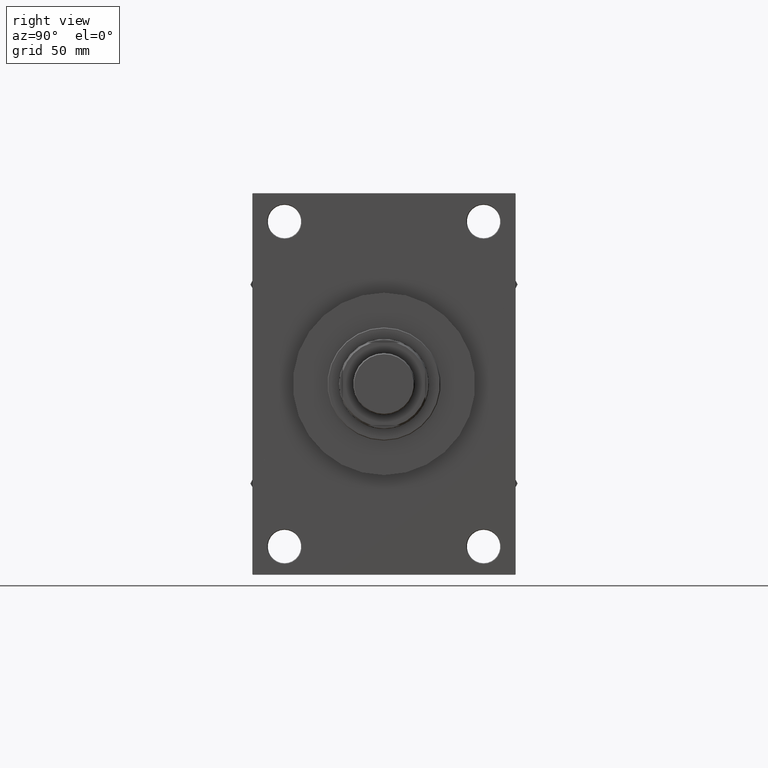
[diagram: clean part render]
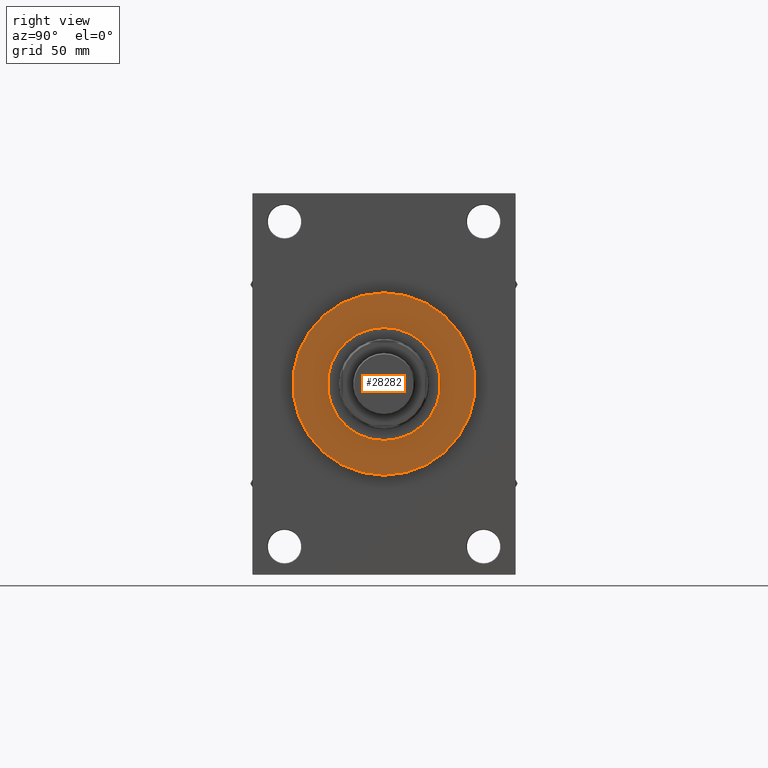
[diagram: same view with one face highlighted and labeled with its STEP entity id]
A machine part, right view. The second image highlights one B-rep face of the part: STEP entity #28282.
In plain terms, the highlighted planar face has unit normal (1, -0, -0).
Its self-contained STEP definition (entity closure, byte-faithful):
#1914 = EDGE_CURVE ( 'NONE', #29864, #13350, #32080, .T. ) ;
#4681 = AXIS2_PLACEMENT_3D ( 'NONE', #27050, #22701, #37802 ) ;
#9245 = DIRECTION ( 'NONE',  ( 1.000000000000000000, 0.000000000000000000, -0.000000000000000000 ) ) ;
#9517 = ORIENTED_EDGE ( 'NONE', *, *, #42931, .F. ) ;
#11107 = AXIS2_PLACEMENT_3D ( 'NONE', #36434, #17665, #43499 ) ;
#11227 = FACE_OUTER_BOUND ( 'NONE', #42627, .T. ) ;
#11788 = ORIENTED_EDGE ( 'NONE', *, *, #1914, .T. ) ;
#12136 = DIRECTION ( 'NONE',  ( 1.000000000000000000, 0.000000000000000000, 0.000000000000000000 ) ) ;
#12197 = AXIS2_PLACEMENT_3D ( 'NONE', #45029, #26959, #12136 ) ;
#12329 = VERTEX_POINT ( 'NONE', #18267 ) ;
#13350 = VERTEX_POINT ( 'NONE', #20614 ) ;
#15034 = EDGE_CURVE ( 'NONE', #13350, #29864, #33182, .T. ) ;
#17665 = DIRECTION ( 'NONE',  ( 0.000000000000000000, 0.000000000000000000, 1.000000000000000000 ) ) ;
#18267 = CARTESIAN_POINT ( 'NONE',  ( -44.00000000000000000, 0.000000000000000000, 43.25999999999999801 ) ) ;
#18710 = ORIENTED_EDGE ( 'NONE', *, *, #15034, .T. ) ;
#19696 = PLANE ( 'NONE',  #21433 ) ;
#20614 = CARTESIAN_POINT ( 'NONE',  ( 71.00000000000001421, 8.694992273946208141E-15, 43.25999999999999801 ) ) ;
#21433 = AXIS2_PLACEMENT_3D ( 'NONE', #24562, #31135, #9245 ) ;
#22701 = DIRECTION ( 'NONE',  ( 0.000000000000000000, 0.000000000000000000, 1.000000000000000000 ) ) ;
#24562 = CARTESIAN_POINT ( 'NONE',  ( 0.000000000000000000, 0.000000000000000000, 43.25999999999999801 ) ) ;
#25296 = VERTEX_POINT ( 'NONE', #36014 ) ;
#26959 = DIRECTION ( 'NONE',  ( 0.000000000000000000, 0.000000000000000000, 1.000000000000000000 ) ) ;
#27050 = CARTESIAN_POINT ( 'NONE',  ( 0.000000000000000000, 0.000000000000000000, 43.25999999999999801 ) ) ;
#27282 = DIRECTION ( 'NONE',  ( 0.000000000000000000, 0.000000000000000000, 1.000000000000000000 ) ) ;
#28282 = ADVANCED_FACE ( 'NONE', ( #44587, #11227 ), #19696, .T. ) ;
#29864 = VERTEX_POINT ( 'NONE', #44187 ) ;
#30461 = CARTESIAN_POINT ( 'NONE',  ( 0.000000000000000000, 0.000000000000000000, 43.25999999999999801 ) ) ;
#31135 = DIRECTION ( 'NONE',  ( 0.000000000000000000, 0.000000000000000000, 1.000000000000000000 ) ) ;
#32080 = CIRCLE ( 'NONE', #11107, 71.00000000000001421 ) ;
#33182 = CIRCLE ( 'NONE', #12197, 71.00000000000001421 ) ;
#35013 = ORIENTED_EDGE ( 'NONE', *, *, #42147, .F. ) ;
#36014 = CARTESIAN_POINT ( 'NONE',  ( 44.00000000000000000, 5.388445916248353619E-15, 43.25999999999999801 ) ) ;
#36434 = CARTESIAN_POINT ( 'NONE',  ( 0.000000000000000000, 0.000000000000000000, 43.25999999999999801 ) ) ;
#37321 = DIRECTION ( 'NONE',  ( 1.000000000000000000, 0.000000000000000000, 0.000000000000000000 ) ) ;
#37364 = AXIS2_PLACEMENT_3D ( 'NONE', #30461, #27282, #37321 ) ;
#37802 = DIRECTION ( 'NONE',  ( 1.000000000000000000, 0.000000000000000000, 0.000000000000000000 ) ) ;
#38893 = CIRCLE ( 'NONE', #37364, 44.00000000000000000 ) ;
#42147 = EDGE_CURVE ( 'NONE', #25296, #12329, #38893, .T. ) ;
#42627 = EDGE_LOOP ( 'NONE', ( #11788, #18710 ) ) ;
#42931 = EDGE_CURVE ( 'NONE', #12329, #25296, #46690, .T. ) ;
#43499 = DIRECTION ( 'NONE',  ( 1.000000000000000000, 0.000000000000000000, 0.000000000000000000 ) ) ;
#44187 = CARTESIAN_POINT ( 'NONE',  ( -71.00000000000001421, 0.000000000000000000, 43.25999999999999801 ) ) ;
#44587 = FACE_BOUND ( 'NONE', #45159, .T. ) ;
#45029 = CARTESIAN_POINT ( 'NONE',  ( 0.000000000000000000, 0.000000000000000000, 43.25999999999999801 ) ) ;
#45159 = EDGE_LOOP ( 'NONE', ( #9517, #35013 ) ) ;
#46690 = CIRCLE ( 'NONE', #4681, 44.00000000000000000 ) ;